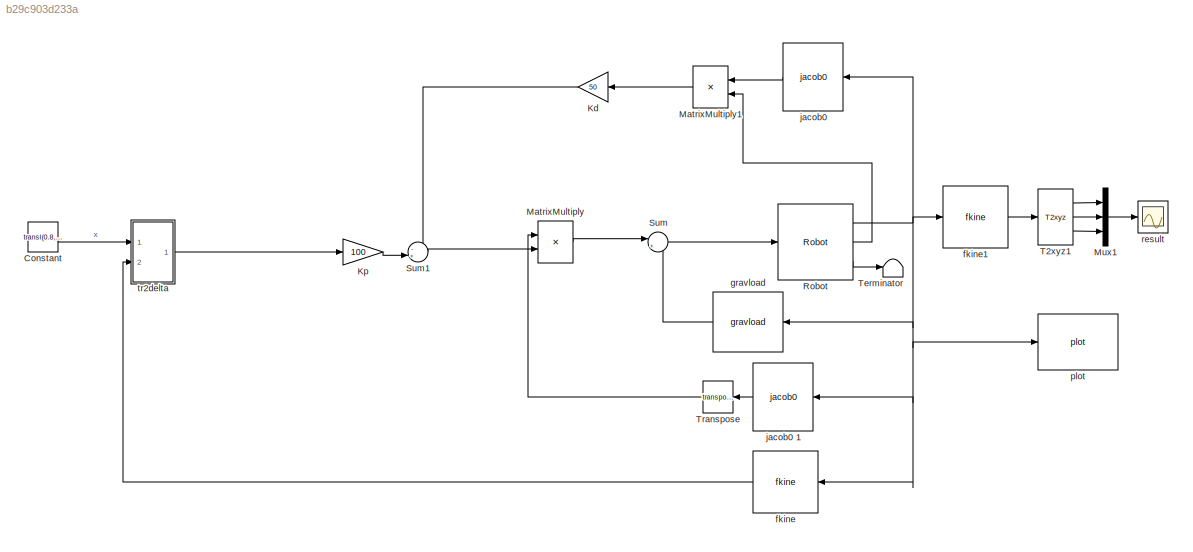
MODEL slx_b29c903d233a
KIND model
CONFIG AbsTol = auto
CONFIG EnableMultiTasking = off
CONFIG FixedStep = auto
CONFIG MaxStep = auto
CONFIG MinStep = auto
CONFIG RelTol = 1e-3
CONFIG SampleTimeConstraint = Unconstrained
CONFIG Solver = VariableStepAuto
CONFIG SolverName = VariableStepAuto
CONFIG StartTime = 0.0
CONFIG StopTime = 10
BLOCK [Constant] Constant
  Value = transl(0.8, 0.2, 0) * troty(pi/2)
BLOCK [Gain] Kd
  Gain = 50
BLOCK [Gain] Kp
  Gain = 100
BLOCK [Product] MatrixMultiply
  Multiplication = Matrix(*)
  Ports = [2, 1]
BLOCK [Product] MatrixMultiply1
  Multiplication = Matrix(*)
  Ports = [2, 1]
BLOCK [Mux] Mux1
  DisplayOption = bar
  Inputs = 3
  Ports = [3, 1]
BLOCK [Reference] Robot  REF=roblocks/Arm/Robot  (lib defined in mdl_2a292b13c81b, mdl_69400f8cfe22, +12 more)
  Ports = [1, 3]
  SourceBlock = roblocks/Arm/Robot
BLOCK [Sum] Sum
  Inputs = |++
  Ports = [2, 1]
BLOCK [Sum] Sum1
  Inputs = -+|
  Ports = [2, 1]
BLOCK [Reference] T2xyz1  REF=roblocks/Toolbox/T2xyz  (lib defined in mdl_2a292b13c81b, mdl_69400f8cfe22, +12 more)
  Ports = [1, 3]
  SourceBlock = roblocks/Toolbox/T2xyz
BLOCK [Terminator] Terminator
BLOCK [Math] Transpose
  Operator = transpose
  Ports = [1, 1]
BLOCK [Reference] fkine  REF=roblocks/Arm/fkine  (lib defined in mdl_2a292b13c81b, mdl_69400f8cfe22, +12 more)
  Ports = [1, 1]
  SourceBlock = roblocks/Arm/fkine
BLOCK [Reference] fkine1  REF=roblocks/Arm/fkine  (lib defined in mdl_2a292b13c81b, mdl_69400f8cfe22, +12 more)
  Ports = [1, 1]
  SourceBlock = roblocks/Arm/fkine
BLOCK [Reference] gravload  REF=roblocks/Arm/gravload  (lib defined in mdl_2a292b13c81b, mdl_69400f8cfe22, +12 more)
  Ports = [1, 1]
  SourceBlock = roblocks/Arm/gravload
BLOCK [Reference] jacob0   REF=roblocks/Arm/jacob0  (lib defined in mdl_2a292b13c81b, mdl_69400f8cfe22, +12 more)

  Ports = [1, 1]
  SourceBlock = roblocks/Arm/jacob0
BLOCK [Reference] jacob0 1  REF=roblocks/Arm/jacob0  (lib defined in mdl_2a292b13c81b, mdl_69400f8cfe22, +12 more)

  Ports = [1, 1]
  SourceBlock = roblocks/Arm/jacob0
BLOCK [Reference] plot  REF=roblocks/Arm/plot  (lib defined in mdl_2a292b13c81b, mdl_69400f8cfe22, +12 more)
  Ports = [1]
  SourceBlock = roblocks/Arm/plot
BLOCK [Scope] result
  Floating = off
  NumInputPorts = 1
  Ports = [1]
  ScopeSpecificationString = Simulink.scopes.TimeScopeBlockCfg('CurrentConfiguration', extmgr.ConfigurationSet(extmgr.Configuration('Core','General UI',true),extmgr.Configuration('Core','Source UI',true),extmgr.Configuration('Sources','WiredSimulink',true,'DataLoggingVariableName','ScopeData1'),extmgr.Configuration('Visuals','Time Domain',true,'SerializedDisplays',{struct('MinYLimReal','-0.26828','MaxYLimReal','0.91403','YLab...<+1418ch>
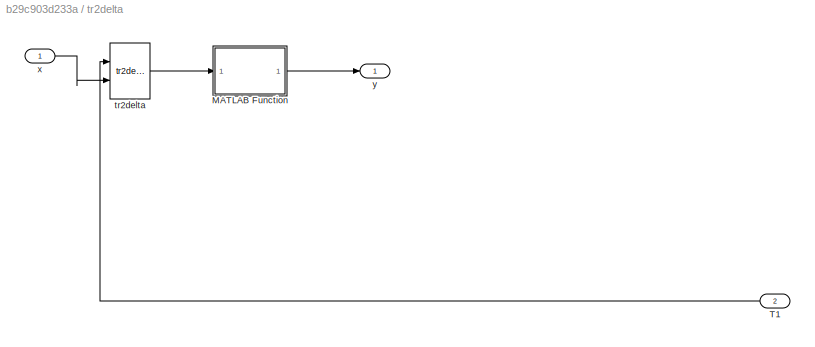
BLOCK [SubSystem] tr2delta
  Ports = [2, 1]
  RequestExecContextInheritance = off
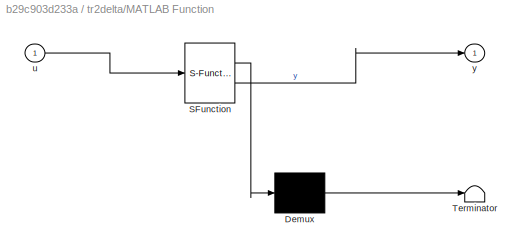
BLOCK [SubSystem] tr2delta/MATLAB Function
  ErrorFcn = Stateflow.Translate.translate
  PermitHierarchicalResolution = ExplicitOnly
  Ports = [1, 1]
  RequestExecContextInheritance = off
  SFBlockType = MATLAB Function
  TreatAsAtomicUnit = on
BLOCK [Demux] tr2delta/MATLAB Function/ Demux 
  Outputs = 1
  Ports = [1, 1]
BLOCK [S-Function] tr2delta/MATLAB Function/ SFunction 
  EnableBusSupport = on
  FunctionName = sf_sfun
  PortCounts = [1 2]
  Ports = [1, 2]
  SFcnIsStateOwnerBlock = off
  SFunctionDeploymentMode = off
  Tag = Stateflow S-Function 2
BLOCK [Terminator] tr2delta/MATLAB Function/ Terminator 
BLOCK [Inport] tr2delta/MATLAB Function/u
BLOCK [Outport] tr2delta/MATLAB Function/y
BLOCK [Inport] tr2delta/T1
  Port = 2
BLOCK [Reference] tr2delta/tr2delta  REF=roblocks/Toolbox/tr2delta  (lib defined in mdl_2a292b13c81b, mdl_69400f8cfe22, +12 more)
  Ports = [2, 1]
  SourceBlock = roblocks/Toolbox/tr2delta
BLOCK [Inport] tr2delta/x
BLOCK [Outport] tr2delta/y
LINE Constant:1 -> tr2delta:1
LINE Kd:1 -> Sum1:1
LINE Kp:1 -> Sum1:2
LINE MatrixMultiply1:1 -> Kd:1
LINE MatrixMultiply:1 -> Sum:1
LINE Mux1:1 -> result:1
NET Robot:1 -> fkine1:1, fkine:1, gravload:1, jacob0 1:1, jacob0 :1, plot:1
LINE Robot:2 -> MatrixMultiply1:2
LINE Robot:3 -> Terminator:1
LINE Sum1:1 -> MatrixMultiply:2
LINE Sum:1 -> Robot:1
LINE T2xyz1:1 -> Mux1:1
LINE T2xyz1:2 -> Mux1:2
LINE T2xyz1:3 -> Mux1:3
LINE Transpose:1 -> MatrixMultiply:1
LINE fkine1:1 -> T2xyz1:1
LINE fkine:1 -> tr2delta:2
LINE gravload:1 -> Sum:2
LINE jacob0 1:1 -> Transpose:1
LINE jacob0 :1 -> MatrixMultiply1:1
LINE tr2delta/MATLAB Function:1 -> tr2delta/y:1
LINE tr2delta/T1:1 -> tr2delta/tr2delta:1
LINE tr2delta/tr2delta:1 -> tr2delta/MATLAB Function:1
LINE tr2delta/x:1 -> tr2delta/tr2delta:2
LINE tr2delta:1 -> Kp:1
note: NET lines group one-source signal fan-out (src -> all destinations, sorted); 1:1 wires keep LINE
CHART tr2delta/MATLAB Function states=1 transitions=1
  STATE_LABEL 'eML_blk_kernel()'
  STATE_LABEL 'SCRIPT:\nfunction y = fcn(u)\n\nt = u(1);\nu(1) = u(3);\nu(3) = -1*t;\n\ny = u;\n'
CHART  states=0 transitions=0
